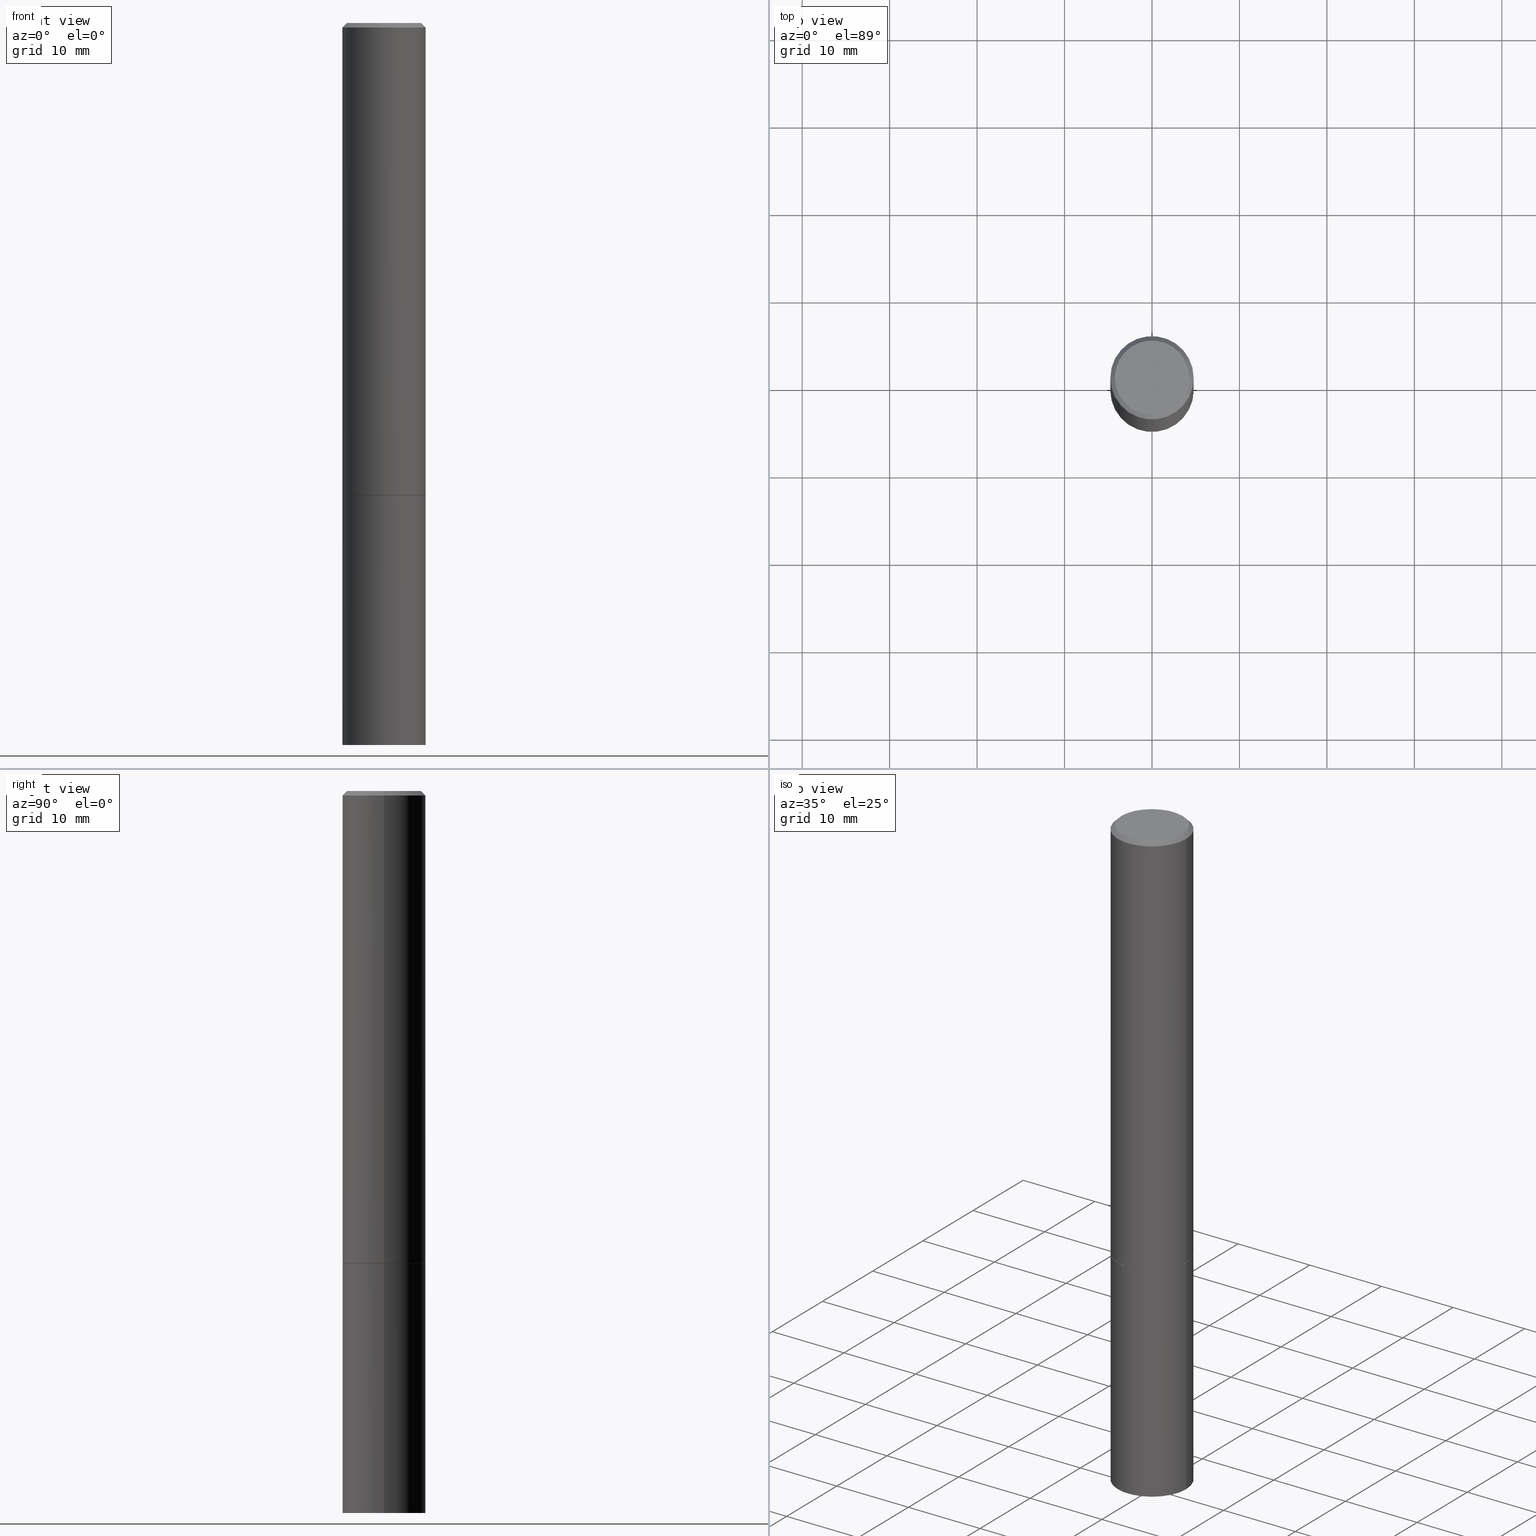
[diagram: canonical four-view strip — front | top / right | iso, engineering-drawing reading convention]
A machine part, canonical four-view strip (front | top / right | iso — engineering-drawing reading convention). The complete STEP part file that produces these views, byte-faithful:
ISO-10303-21;
HEADER;
FILE_DESCRIPTION (( 'STEP AP203' ),
    '1' );
FILE_NAME ('77148.STEP',
    '2024-02-29T14:58:03',
    ( '' ),
    ( '' ),
    'SwSTEP 2.0',
    'SolidWorks 2023',
    '' );
FILE_SCHEMA (( 'CONFIG_CONTROL_DESIGN' ));
ENDSEC;

DATA;
#1 = DIRECTION ( 'NONE',  ( 1.000000000000000000, -6.982962677686266711E-15, 0.000000000000000000 ) ) ;
#2 = ADVANCED_FACE ( 'NONE', ( #106 ), #176, .T. ) ;
#3 = PLANE ( 'NONE',  #4 ) ;
#4 = AXIS2_PLACEMENT_3D ( 'NONE', #89, #115, #173 ) ;
#5 = CARTESIAN_POINT ( 'NONE',  ( -0.1874999999999998890, 1.332267629550187060E-15, -9.223003294227942385E-30 ) ) ;
#6 = PERSON ( 'UNSPECIFIED', 'UNSPECIFIED', 'UNSPECIFIED', ('UNSPECIFIED'), ('UNSPECIFIED'), ('UNSPECIFIED') ) ;
#7 = DIRECTION ( 'NONE',  ( 1.000000000000000000, -6.982962677686265922E-15, 4.875936752492899929E-29 ) ) ;
#8 = CARTESIAN_POINT ( 'NONE',  ( 0.000000000000000000, 0.000000000000000000, 0.000000000000000000 ) ) ;
#9 = CARTESIAN_POINT ( 'NONE',  ( 0.1874999999999997502, -1.356173001359023494E-15, -0.02000000000000004205 ) ) ;
#10 = VECTOR ( 'NONE', #30, 39.37007874015748854 ) ;
#11 = ORIENTED_EDGE ( 'NONE', *, *, #210, .T. ) ;
#12 = ADVANCED_FACE ( 'NONE', ( #51 ), #189, .F. ) ;
#13 = CARTESIAN_POINT ( 'NONE',  ( 5.196621213143415268E-29, -7.419397845041683624E-15, -2.125000000000000000 ) ) ;
#14 = EDGE_CURVE ( 'NONE', #221, #358, #225, .T. ) ;
#15 = CARTESIAN_POINT ( 'NONE',  ( 5.194175744337229665E-29, -7.415906363702840616E-15, -2.123999999999999666 ) ) ;
#16 = CYLINDRICAL_SURFACE ( 'NONE', #335, 0.1875000000000000278 ) ;
#17 = EDGE_CURVE ( 'NONE', #277, #300, #337, .T. ) ;
#18 = CLOSED_SHELL ( 'NONE', ( #318, #101, #118, #249 ) ) ;
#19 = CC_DESIGN_APPROVAL ( #329, ( #66 ) ) ;
#20 = APPROVAL_STATUS ( 'not_yet_approved' ) ;
#21 = ORIENTED_EDGE ( 'NONE', *, *, #198, .T. ) ;
#22 = DATE_TIME_ROLE ( 'classification_date' ) ;
#23 = VERTEX_POINT ( 'NONE', #311 ) ;
#24 = PERSON_AND_ORGANIZATION_ROLE ( 'design_owner' ) ;
#25 = CARTESIAN_POINT ( 'NONE',  ( 1.169646248512447820E-15, 0.1674999999999997602, -5.826888680111757675E-16 ) ) ;
#26 = CIRCLE ( 'NONE', #185, 0.1875000000000000278 ) ;
#27 = CALENDAR_DATE ( 2024, 29, 2 ) ;
#28 = ORIENTED_EDGE ( 'NONE', *, *, #310, .F. ) ;
#29 = ORIENTED_EDGE ( 'NONE', *, *, #198, .F. ) ;
#30 = DIRECTION ( 'NONE',  ( 0.7071067811865353603, -2.468850131082130054E-15, 0.7071067811865595631 ) ) ;
#31 = CARTESIAN_POINT ( 'NONE',  ( 1.309305502066254683E-15, 0.1874999999999886757, -3.250000000000000444 ) ) ;
#32 = CC_DESIGN_PERSON_AND_ORGANIZATION_ASSIGNMENT ( #276, #24, ( #262 ) ) ;
#33 = CARTESIAN_POINT ( 'NONE',  ( 4.890937612370283668E-31, -6.982962677686305168E-17, -0.02000000000000004205 ) ) ;
#34 = LINE ( 'NONE', #144, #339 ) ;
#35 = AXIS2_PLACEMENT_3D ( 'NONE', #175, #36, #146 ) ;
#36 = DIRECTION ( 'NONE',  ( -2.445468806185136597E-29, 3.491481338843145583E-15, 1.000000000000000000 ) ) ;
#37 = VECTOR ( 'NONE', #269, 39.37007874015748143 ) ;
#38 = CYLINDRICAL_SURFACE ( 'NONE', #218, 0.1874999999999998890 ) ;
#39 = ORIENTED_EDGE ( 'NONE', *, *, #237, .F. ) ;
#40 = CARTESIAN_POINT ( 'NONE',  ( 5.196621213143415268E-29, -7.419397845041683624E-15, -2.125000000000000000 ) ) ;
#41 = EDGE_LOOP ( 'NONE', ( #53, #29 ) ) ;
#42 = CARTESIAN_POINT ( 'NONE',  ( 0.1864999999999999714, -8.721720384430172617E-15, -2.125000000000000000 ) ) ;
#43 = CIRCLE ( 'NONE', #59, 0.1874999999999997502 ) ;
#44 = CARTESIAN_POINT ( 'NONE',  ( -0.1875000000000000278, -2.410600365689662531E-15, -2.123999999999999666 ) ) ;
#45 = EDGE_CURVE ( 'NONE', #23, #81, #113, .T. ) ;
#46 = MECHANICAL_CONTEXT ( 'NONE', #241, 'mechanical' ) ;
#47 = EDGE_LOOP ( 'NONE', ( #148, #137, #67, #294 ) ) ;
#48 = ORGANIZATION ( 'UNSPECIFIED', 'UNSPECIFIED', '' ) ;
#49 = PERSON_AND_ORGANIZATION_ROLE ( 'creator' ) ;
#50 = ORIENTED_EDGE ( 'NONE', *, *, #141, .T. ) ;
#51 = FACE_OUTER_BOUND ( 'NONE', #309, .T. ) ;
#52 = PERSON_AND_ORGANIZATION ( #6, #48 ) ;
#53 = ORIENTED_EDGE ( 'NONE', *, *, #326, .F. ) ;
#54 = AXIS2_PLACEMENT_3D ( 'NONE', #259, #340, #316 ) ;
#55 = CALENDAR_DATE ( 2024, 29, 2 ) ;
#56 = EDGE_LOOP ( 'NONE', ( #205, #298, #77, #191 ) ) ;
#57 = DIRECTION ( 'NONE',  ( 1.000000000000000000, -6.982962677686265922E-15, 4.876176775795935793E-29 ) ) ;
#58 = FACE_OUTER_BOUND ( 'NONE', #47, .T. ) ;
#59 = AXIS2_PLACEMENT_3D ( 'NONE', #117, #230, #202 ) ;
#60 = DIRECTION ( 'NONE',  ( -2.445468806185136597E-29, 3.491481338843145583E-15, 1.000000000000000000 ) ) ;
#61 = CC_DESIGN_DATE_AND_TIME_ASSIGNMENT ( #334, #22, ( #94 ) ) ;
#62 = CARTESIAN_POINT ( 'NONE',  ( 0.1875000000000000278, -8.725211865769015625E-15, -2.123999999999999666 ) ) ;
#63 = CARTESIAN_POINT ( 'NONE',  ( -0.1875000000000000278, -8.051088468590765387E-15, -2.125000000000000000 ) ) ;
#64 = LOCAL_TIME ( 9, 58, 3.000000000000000000, #307 ) ;
#65 = CARTESIAN_POINT ( 'NONE',  ( 0.1874999999999998890, -1.309305502066174022E-15, 9.142831454617374006E-30 ) ) ;
#66 = PRODUCT_DEFINITION_FORMATION_WITH_SPECIFIED_SOURCE ( 'ANY', '', #262, .NOT_KNOWN. ) ;
#67 = ORIENTED_EDGE ( 'NONE', *, *, #233, .T. ) ;
#68 = CARTESIAN_POINT ( 'NONE',  ( -0.1864999999999999714, -6.094235642849095994E-15, -2.125000000000000000 ) ) ;
#69 = FACE_OUTER_BOUND ( 'NONE', #336, .T. ) ;
#70 = CARTESIAN_POINT ( 'NONE',  ( 0.000000000000000000, 0.000000000000000000, 0.000000000000000000 ) ) ;
#71 = CALENDAR_DATE ( 2024, 29, 2 ) ;
#72 = APPROVAL ( #190, 'UNSPECIFIED' ) ;
#73 = DIRECTION ( 'NONE',  ( 1.000000000000000000, 0.000000000000000000, 0.000000000000000000 ) ) ;
#74 = EDGE_LOOP ( 'NONE', ( #327, #79 ) ) ;
#75 = CIRCLE ( 'NONE', #133, 0.1674999999999997602 ) ;
#76 = DATE_TIME_ROLE ( 'creation_date' ) ;
#77 = ORIENTED_EDGE ( 'NONE', *, *, #157, .T. ) ;
#78 =( NAMED_UNIT ( * ) PLANE_ANGLE_UNIT ( ) SI_UNIT ( $, .RADIAN. ) );
#79 = ORIENTED_EDGE ( 'NONE', *, *, #45, .F. ) ;
#80 = PERSON_AND_ORGANIZATION ( #6, #48 ) ;
#81 = VERTEX_POINT ( 'NONE', #234 ) ;
#82 = EDGE_CURVE ( 'NONE', #300, #275, #155, .T. ) ;
#83 = CIRCLE ( 'NONE', #35, 0.1875000000000000278 ) ;
#84 = DIRECTION ( 'NONE',  ( -0.7071067811865465735, 2.468850131082246805E-15, -0.7071067811865484609 ) ) ;
#85 = CC_DESIGN_DATE_AND_TIME_ASSIGNMENT ( #330, #76, ( #143 ) ) ;
#86 = DIRECTION ( 'NONE',  ( -2.445468806185136597E-29, 3.491481338843145583E-15, 1.000000000000000000 ) ) ;
#87 = DIRECTION ( 'NONE',  ( -2.445468806185136597E-29, 3.491481338843145583E-15, 1.000000000000000000 ) ) ;
#88 = VECTOR ( 'NONE', #324, 39.37007874015748143 ) ;
#89 = CARTESIAN_POINT ( 'NONE',  ( 1.309305502066226876E-15, 0.1874999999999926170, -2.125000000000000444 ) ) ;
#90 = DIRECTION ( 'NONE',  ( -2.445468806185136877E-29, 3.491481338843145188E-15, 1.000000000000000000 ) ) ;
#91 = PRODUCT_DEFINITION_SHAPE ( 'NONE', 'NONE',  #143 ) ;
#92 = DIRECTION ( 'NONE',  ( 1.000000000000000000, -6.982962677686269077E-15, 0.000000000000000000 ) ) ;
#93 = AXIS2_PLACEMENT_3D ( 'NONE', #314, #283, #57 ) ;
#94 = SECURITY_CLASSIFICATION ( '', '', #353 ) ;
#95 = LINE ( 'NONE', #68, #158 ) ;
#96 = CC_DESIGN_PERSON_AND_ORGANIZATION_ASSIGNMENT ( #223, #156, ( #143 ) ) ;
#97 = CYLINDRICAL_SURFACE ( 'NONE', #193, 0.1875000000000000278 ) ;
#98 = DIRECTION ( 'NONE',  ( -2.445468806185136597E-29, 3.491481338843145583E-15, 1.000000000000000000 ) ) ;
#99 = DIRECTION ( 'NONE',  ( 1.000000000000000000, -6.982962677686269077E-15, 0.000000000000000000 ) ) ;
#100 = AXIS2_PLACEMENT_3D ( 'NONE', #40, #349, #99 ) ;
#101 = ADVANCED_FACE ( 'NONE', ( #229 ), #172, .T. ) ;
#102 = APPROVAL_ROLE ( '' ) ;
#103 = APPROVAL_DATE_TIME ( #354, #72 ) ;
#104 = ORIENTED_EDGE ( 'NONE', *, *, #112, .T. ) ;
#105 = COORDINATED_UNIVERSAL_TIME_OFFSET ( 5, 0, .BEHIND. ) ;
#106 = FACE_OUTER_BOUND ( 'NONE', #165, .T. ) ;
#107 = COORDINATED_UNIVERSAL_TIME_OFFSET ( 5, 0, .BEHIND. ) ;
#108 = ORIENTED_EDGE ( 'NONE', *, *, #17, .F. ) ;
#109 = CALENDAR_DATE ( 2024, 29, 2 ) ;
#110 = ORIENTED_EDGE ( 'NONE', *, *, #278, .F. ) ;
#111 = ORIENTED_EDGE ( 'NONE', *, *, #264, .F. ) ;
#112 = EDGE_CURVE ( 'NONE', #346, #129, #138, .T. ) ;
#113 = CIRCLE ( 'NONE', #243, 0.1875000000000000278 ) ;
#114 = CONICAL_SURFACE ( 'NONE', #100, 0.1864999999999999714, 0.7853981633974311816 ) ;
#115 = DIRECTION ( 'NONE',  ( 2.438088387897960049E-29, -3.491481338843145188E-15, -1.000000000000000000 ) ) ;
#116 = DIRECTION ( 'NONE',  ( -1.000000000000000000, 6.982962677686265133E-15, 0.000000000000000000 ) ) ;
#117 = CARTESIAN_POINT ( 'NONE',  ( 4.890937612370283668E-31, -6.982962677686305168E-17, -0.02000000000000004205 ) ) ;
#118 = ADVANCED_FACE ( 'NONE', ( #231 ), #3, .F. ) ;
#119 = DIRECTION ( 'NONE',  ( -2.445468806185136597E-29, 3.491481338843145583E-15, 1.000000000000000000 ) ) ;
#120 = CARTESIAN_POINT ( 'NONE',  ( -0.1874999999999997502, 1.239475875289309935E-15, -0.02000000000000004205 ) ) ;
#121 = ADVANCED_FACE ( 'NONE', ( #140 ), #341, .F. ) ;
#122 = FACE_OUTER_BOUND ( 'NONE', #265, .T. ) ;
#123 = LENGTH_MEASURE_WITH_UNIT ( LENGTH_MEASURE( 0.02539999999999999897 ), #292 );
#124 = DIRECTION ( 'NONE',  ( -2.445468806185136597E-29, 3.491481338843145583E-15, 1.000000000000000000 ) ) ;
#125 = DIRECTION ( 'NONE',  ( -2.445468806185136597E-29, 3.491481338843145583E-15, 1.000000000000000000 ) ) ;
#126 = CARTESIAN_POINT ( 'NONE',  ( 5.196621213143415268E-29, -7.419397845041683624E-15, -2.125000000000000000 ) ) ;
#127 = CC_DESIGN_APPROVAL ( #343, ( #143 ) ) ;
#128 = APPROVAL_ROLE ( '' ) ;
#129 = VERTEX_POINT ( 'NONE', #62 ) ;
#130 = CC_DESIGN_PERSON_AND_ORGANIZATION_ASSIGNMENT ( #362, #134, ( #94 ) ) ;
#131 = COORDINATED_UNIVERSAL_TIME_OFFSET ( 5, 0, .BEHIND. ) ;
#132 = ORIENTED_EDGE ( 'NONE', *, *, #282, .T. ) ;
#133 = AXIS2_PLACEMENT_3D ( 'NONE', #317, #119, #232 ) ;
#134 = PERSON_AND_ORGANIZATION_ROLE ( 'classification_officer' ) ;
#135 = ORIENTED_EDGE ( 'NONE', *, *, #310, .T. ) ;
#136 = ADVANCED_FACE ( 'NONE', ( #258 ), #351, .T. ) ;
#137 = ORIENTED_EDGE ( 'NONE', *, *, #141, .F. ) ;
#138 = LINE ( 'NONE', #366, #10 ) ;
#139 = CC_DESIGN_SECURITY_CLASSIFICATION ( #94, ( #66 ) ) ;
#140 = FACE_OUTER_BOUND ( 'NONE', #41, .T. ) ;
#141 = EDGE_CURVE ( 'NONE', #361, #253, #323, .T. ) ;
#142 = DIRECTION ( 'NONE',  ( 2.438088387897960049E-29, -3.491481338843145188E-15, -1.000000000000000000 ) ) ;
#143 = PRODUCT_DEFINITION ( 'UNKNOWN', '', #66, #154 ) ;
#144 = CARTESIAN_POINT ( 'NONE',  ( 0.1875000000000000278, -1.309305502066175008E-15, 9.142831454617381013E-30 ) ) ;
#145 = AXIS2_PLACEMENT_3D ( 'NONE', #33, #86, #169 ) ;
#146 = DIRECTION ( 'NONE',  ( 1.000000000000000000, -6.982962677686261189E-15, 0.000000000000000000 ) ) ;
#147 = DIRECTION ( 'NONE',  ( -2.445468806185136597E-29, 3.491481338843145583E-15, 1.000000000000000000 ) ) ;
#148 = ORIENTED_EDGE ( 'NONE', *, *, #257, .F. ) ;
#149 = ORIENTED_EDGE ( 'NONE', *, *, #14, .T. ) ;
#150 = CLOSED_SHELL ( 'NONE', ( #299, #350, #136, #162, #356, #2, #121, #12 ) ) ;
#151 = APPROVAL_PERSON_ORGANIZATION ( #52, #329, #128 ) ;
#152 = LINE ( 'NONE', #209, #171 ) ;
#153 = ADVANCED_BREP_SHAPE_REPRESENTATION ( '77148', ( #207, #208, #238 ), #290 ) ;
#154 = DESIGN_CONTEXT ( 'detailed design', #302, 'design' ) ;
#155 = CIRCLE ( 'NONE', #145, 0.1874999999999997502 ) ;
#156 = PERSON_AND_ORGANIZATION_ROLE ( 'creator' ) ;
#157 = EDGE_CURVE ( 'NONE', #275, #300, #43, .T. ) ;
#158 = VECTOR ( 'NONE', #235, 39.37007874015748854 ) ;
#159 = ORIENTED_EDGE ( 'NONE', *, *, #264, .T. ) ;
#160 = APPROVAL_ROLE ( '' ) ;
#161 = VERTEX_POINT ( 'NONE', #312 ) ;
#162 = ADVANCED_FACE ( 'NONE', ( #58 ), #365, .T. ) ;
#163 = ORIENTED_EDGE ( 'NONE', *, *, #210, .F. ) ;
#164 = PERSON_AND_ORGANIZATION_ROLE ( 'design_supplier' ) ;
#165 = EDGE_LOOP ( 'NONE', ( #111, #21, #104, #39 ) ) ;
#166 = APPROVAL_PERSON_ORGANIZATION ( #301, #343, #160 ) ;
#167 =( CONVERSION_BASED_UNIT ( 'INCH', #123 ) LENGTH_UNIT ( ) NAMED_UNIT ( #315 ) );
#168 = ORIENTED_EDGE ( 'NONE', *, *, #17, .T. ) ;
#169 = DIRECTION ( 'NONE',  ( 1.000000000000000000, -6.982962677686265133E-15, 0.000000000000000000 ) ) ;
#170 = DIRECTION ( 'NONE',  ( 2.445468806185136597E-29, -3.491481338843145583E-15, -1.000000000000000000 ) ) ;
#171 = VECTOR ( 'NONE', #242, 39.37007874015748143 ) ;
#172 = PLANE ( 'NONE',  #345 ) ;
#173 = DIRECTION ( 'NONE',  ( -1.000000000000000000, 6.982962677686265922E-15, -4.876176775795935793E-29 ) ) ;
#174 = PRODUCT_RELATED_PRODUCT_CATEGORY ( 'detail', '', ( #262 ) ) ;
#175 = CARTESIAN_POINT ( 'NONE',  ( 7.947773620101693940E-29, -1.134731435124022443E-14, -3.250000000000000000 ) ) ;
#176 = CONICAL_SURFACE ( 'NONE', #236, 0.1864999999999999714, 0.7853981633974311816 ) ;
#177 = LOCAL_TIME ( 9, 58, 3.000000000000000000, #107 ) ;
#178 = DIRECTION ( 'NONE',  ( -2.445468806185136597E-29, 3.491481338843145583E-15, 1.000000000000000000 ) ) ;
#179 = LINE ( 'NONE', #9, #37 ) ;
#180 = ORIENTED_EDGE ( 'NONE', *, *, #112, .F. ) ;
#181 = FACE_OUTER_BOUND ( 'NONE', #188, .T. ) ;
#182 = FACE_OUTER_BOUND ( 'NONE', #280, .T. ) ;
#183 = EDGE_LOOP ( 'NONE', ( #132, #168, #246, #306 ) ) ;
#184 = CARTESIAN_POINT ( 'NONE',  ( 0.000000000000000000, 0.000000000000000000, 0.000000000000000000 ) ) ;
#185 = AXIS2_PLACEMENT_3D ( 'NONE', #15, #270, #240 ) ;
#186 = ORIENTED_EDGE ( 'NONE', *, *, #304, .T. ) ;
#187 = DIRECTION ( 'NONE',  ( 0.000000000000000000, 0.000000000000000000, 1.000000000000000000 ) ) ;
#188 = EDGE_LOOP ( 'NONE', ( #364, #159, #273, #180 ) ) ;
#189 = PLANE ( 'NONE',  #328 ) ;
#190 = APPROVAL_STATUS ( 'not_yet_approved' ) ;
#191 = ORIENTED_EDGE ( 'NONE', *, *, #233, .F. ) ;
#192 = AXIS2_PLACEMENT_3D ( 'NONE', #338, #60, #7 ) ;
#193 = AXIS2_PLACEMENT_3D ( 'NONE', #342, #98, #239 ) ;
#194 = CARTESIAN_POINT ( 'NONE',  ( 5.194175744337229665E-29, -7.415906363702840616E-15, -2.123999999999999666 ) ) ;
#195 = DIRECTION ( 'NONE',  ( 2.445468806185136597E-29, -3.491481338843145583E-15, -1.000000000000000000 ) ) ;
#196 = CC_DESIGN_PERSON_AND_ORGANIZATION_ASSIGNMENT ( #332, #164, ( #66 ) ) ;
#197 = DIRECTION ( 'NONE',  ( -2.445468806185136597E-29, 3.491481338843145583E-15, 1.000000000000000000 ) ) ;
#198 = EDGE_CURVE ( 'NONE', #161, #346, #254, .T. ) ;
#199 = VECTOR ( 'NONE', #90, 39.37007874015748143 ) ;
#200 = AXIS2_PLACEMENT_3D ( 'NONE', #194, #295, #268 ) ;
#201 = CARTESIAN_POINT ( 'NONE',  ( 4.890937612370283668E-31, -6.982962677686305168E-17, -0.02000000000000004205 ) ) ;
#202 = DIRECTION ( 'NONE',  ( 1.000000000000000000, -6.982962677686265133E-15, 0.000000000000000000 ) ) ;
#203 = FACE_OUTER_BOUND ( 'NONE', #183, .T. ) ;
#204 = CARTESIAN_POINT ( 'NONE',  ( -0.1674999999999997602, 1.204561061900878878E-15, 4.268512490092109750E-18 ) ) ;
#205 = ORIENTED_EDGE ( 'NONE', *, *, #214, .F. ) ;
#206 = CARTESIAN_POINT ( 'NONE',  ( 0.000000000000000000, 0.000000000000000000, 0.000000000000000000 ) ) ;
#207 = MANIFOLD_SOLID_BREP ( 'Body-Move/Copy2[1]', #18 ) ;
#208 = MANIFOLD_SOLID_BREP ( 'Body-Move/Copy2[2]', #150 ) ;
#209 = CARTESIAN_POINT ( 'NONE',  ( -0.1875000000000000278, 1.332267629550188046E-15, -9.223003294227947991E-30 ) ) ;
#210 = EDGE_CURVE ( 'NONE', #81, #358, #34, .T. ) ;
#211 = AXIS2_PLACEMENT_3D ( 'NONE', #287, #170, #286 ) ;
#212 = CIRCLE ( 'NONE', #256, 0.1864999999999999714 ) ;
#213 = CARTESIAN_POINT ( 'NONE',  ( -0.1874999999999997502, 1.239475875289309935E-15, -0.02000000000000004205 ) ) ;
#214 = EDGE_CURVE ( 'NONE', #253, #361, #75, .T. ) ;
#215 = SHAPE_DEFINITION_REPRESENTATION ( #91, #153 ) ;
#216 = ORIENTED_EDGE ( 'NONE', *, *, #228, .T. ) ;
#217 = AXIS2_PLACEMENT_3D ( 'NONE', #201, #195, #116 ) ;
#218 = AXIS2_PLACEMENT_3D ( 'NONE', #8, #147, #263 ) ;
#219 = CARTESIAN_POINT ( 'NONE',  ( 5.196621213143415268E-29, -7.419397845041683624E-15, -2.125000000000000000 ) ) ;
#220 = APPROVAL_DATE_TIME ( #325, #329 ) ;
#221 = VERTEX_POINT ( 'NONE', #63 ) ;
#222 = UNCERTAINTY_MEASURE_WITH_UNIT (LENGTH_MEASURE( 1.000000000000000082E-05 ), #167, 'distance_accuracy_value', 'NONE');
#223 = PERSON_AND_ORGANIZATION ( #6, #48 ) ;
#224 = ORIENTED_EDGE ( 'NONE', *, *, #45, .T. ) ;
#225 = CIRCLE ( 'NONE', #313, 0.1875000000000000278 ) ;
#226 = ORIENTED_EDGE ( 'NONE', *, *, #237, .T. ) ;
#227 = AXIS2_PLACEMENT_3D ( 'NONE', #13, #125, #293 ) ;
#228 = EDGE_CURVE ( 'NONE', #81, #23, #83, .T. ) ;
#229 = FACE_OUTER_BOUND ( 'NONE', #74, .T. ) ;
#230 = DIRECTION ( 'NONE',  ( -2.445468806185136597E-29, 3.491481338843145583E-15, 1.000000000000000000 ) ) ;
#231 = FACE_OUTER_BOUND ( 'NONE', #266, .T. ) ;
#232 = DIRECTION ( 'NONE',  ( 1.000000000000000000, -6.982962677686265922E-15, 4.875936752492899929E-29 ) ) ;
#233 = EDGE_CURVE ( 'NONE', #361, #300, #261, .T. ) ;
#234 = CARTESIAN_POINT ( 'NONE',  ( 0.1875000000000000278, -1.265661985330639786E-14, -3.250000000000000000 ) ) ;
#235 = DIRECTION ( 'NONE',  ( -0.7071067811865353603, 7.493145998870309984E-15, 0.7071067811865595631 ) ) ;
#236 = AXIS2_PLACEMENT_3D ( 'NONE', #219, #331, #303 ) ;
#237 = EDGE_CURVE ( 'NONE', #277, #129, #289, .T. ) ;
#238 = AXIS2_PLACEMENT_3D ( 'NONE', #184, #187, #73 ) ;
#239 = DIRECTION ( 'NONE',  ( 1.000000000000000000, -6.982962677686265922E-15, 4.876176775795935793E-29 ) ) ;
#240 = DIRECTION ( 'NONE',  ( 1.000000000000000000, -6.982962677686266711E-15, 0.000000000000000000 ) ) ;
#241 = APPLICATION_CONTEXT ( 'configuration controlled 3d designs of mechanical parts and assemblies' ) ;
#242 = DIRECTION ( 'NONE',  ( -2.445468806185136877E-29, 3.491481338843145188E-15, 1.000000000000000000 ) ) ;
#243 = AXIS2_PLACEMENT_3D ( 'NONE', #255, #87, #288 ) ;
#244 = APPLICATION_PROTOCOL_DEFINITION ( 'international standard', 'config_control_design', 1994, #302 ) ;
#245 = COORDINATED_UNIVERSAL_TIME_OFFSET ( 5, 0, .BEHIND. ) ;
#246 = ORIENTED_EDGE ( 'NONE', *, *, #157, .F. ) ;
#247 = CALENDAR_DATE ( 2024, 29, 2 ) ;
#248 = ORIENTED_EDGE ( 'NONE', *, *, #214, .T. ) ;
#249 = ADVANCED_FACE ( 'NONE', ( #122 ), #97, .T. ) ;
#250 = LOCAL_TIME ( 9, 58, 3.000000000000000000, #131 ) ;
#251 = DIRECTION ( 'NONE',  ( 2.438088387897960049E-29, -3.491481338843145188E-15, -1.000000000000000000 ) ) ;
#252 = ORIENTED_EDGE ( 'NONE', *, *, #82, .F. ) ;
#253 = VERTEX_POINT ( 'NONE', #321 ) ;
#254 = CIRCLE ( 'NONE', #54, 0.1864999999999999714 ) ;
#255 = CARTESIAN_POINT ( 'NONE',  ( 7.947773620101693940E-29, -1.134731435124022443E-14, -3.250000000000000000 ) ) ;
#256 = AXIS2_PLACEMENT_3D ( 'NONE', #126, #348, #92 ) ;
#257 = EDGE_CURVE ( 'NONE', #253, #275, #179, .T. ) ;
#258 = FACE_OUTER_BOUND ( 'NONE', #56, .T. ) ;
#259 = CARTESIAN_POINT ( 'NONE',  ( 5.196621213143415268E-29, -7.419397845041683624E-15, -2.125000000000000000 ) ) ;
#260 = DIRECTION ( 'NONE',  ( -2.445468806185136877E-29, 3.491481338843145188E-15, 1.000000000000000000 ) ) ;
#261 = LINE ( 'NONE', #120, #284 ) ;
#262 = PRODUCT ( '77148', '77148', '', ( #46 ) ) ;
#263 = DIRECTION ( 'NONE',  ( 1.000000000000000000, -6.982962677686265922E-15, 4.876176775795935793E-29 ) ) ;
#264 = EDGE_CURVE ( 'NONE', #161, #277, #95, .T. ) ;
#265 = EDGE_LOOP ( 'NONE', ( #110, #224, #11, #355 ) ) ;
#266 = EDGE_LOOP ( 'NONE', ( #135, #149 ) ) ;
#267 = CC_DESIGN_PERSON_AND_ORGANIZATION_ASSIGNMENT ( #274, #49, ( #66 ) ) ;
#268 = DIRECTION ( 'NONE',  ( 1.000000000000000000, -6.982962677686266711E-15, 0.000000000000000000 ) ) ;
#269 = DIRECTION ( 'NONE',  ( 0.7071067811865465735, -7.319954787623252890E-15, -0.7071067811865484609 ) ) ;
#270 = DIRECTION ( 'NONE',  ( -2.445468806185136597E-29, 3.491481338843145583E-15, 1.000000000000000000 ) ) ;
#271 = CC_DESIGN_APPROVAL ( #72, ( #94 ) ) ;
#272 = LOCAL_TIME ( 9, 58, 3.000000000000000000, #105 ) ;
#273 = ORIENTED_EDGE ( 'NONE', *, *, #282, .F. ) ;
#274 = PERSON_AND_ORGANIZATION ( #6, #48 ) ;
#275 = VERTEX_POINT ( 'NONE', #296 ) ;
#276 = PERSON_AND_ORGANIZATION ( #6, #48 ) ;
#277 = VERTEX_POINT ( 'NONE', #44 ) ;
#278 = EDGE_CURVE ( 'NONE', #23, #221, #152, .T. ) ;
#279 =( NAMED_UNIT ( * ) SI_UNIT ( $, .STERADIAN. ) SOLID_ANGLE_UNIT ( ) );
#280 = EDGE_LOOP ( 'NONE', ( #108, #226, #186, #252 ) ) ;
#281 = ORIENTED_EDGE ( 'NONE', *, *, #278, .T. ) ;
#282 = EDGE_CURVE ( 'NONE', #129, #277, #26, .T. ) ;
#283 = DIRECTION ( 'NONE',  ( -2.438088387897960049E-29, 3.491481338843145188E-15, 1.000000000000000000 ) ) ;
#284 = VECTOR ( 'NONE', #84, 39.37007874015748143 ) ;
#285 = DIRECTION ( 'NONE',  ( -1.000000000000000000, 6.982962677686265922E-15, -4.876176775795935793E-29 ) ) ;
#286 = DIRECTION ( 'NONE',  ( -1.000000000000000000, 6.982962677686265133E-15, 0.000000000000000000 ) ) ;
#287 = CARTESIAN_POINT ( 'NONE',  ( 4.890937612370283668E-31, -6.982962677686305168E-17, -0.02000000000000004205 ) ) ;
#288 = DIRECTION ( 'NONE',  ( 1.000000000000000000, -6.982962677686261189E-15, 0.000000000000000000 ) ) ;
#289 = CIRCLE ( 'NONE', #200, 0.1875000000000000278 ) ;
#290 =( GEOMETRIC_REPRESENTATION_CONTEXT ( 3 ) GLOBAL_UNCERTAINTY_ASSIGNED_CONTEXT ( ( #222 ) ) GLOBAL_UNIT_ASSIGNED_CONTEXT ( ( #167, #78, #279 ) ) REPRESENTATION_CONTEXT ( 'NONE', 'WORKASPACE' ) );
#291 = DIRECTION ( 'NONE',  ( 1.000000000000000000, -6.982962677686265922E-15, 4.876176775795935793E-29 ) ) ;
#292 =( LENGTH_UNIT ( ) NAMED_UNIT ( * ) SI_UNIT ( $, .METRE. ) );
#293 = DIRECTION ( 'NONE',  ( 1.000000000000000000, -6.982962677686266711E-15, 0.000000000000000000 ) ) ;
#294 = ORIENTED_EDGE ( 'NONE', *, *, #82, .T. ) ;
#295 = DIRECTION ( 'NONE',  ( -2.445468806185136597E-29, 3.491481338843145583E-15, 1.000000000000000000 ) ) ;
#296 = CARTESIAN_POINT ( 'NONE',  ( 0.1874999999999997502, -1.356173001359023494E-15, -0.02000000000000004205 ) ) ;
#297 = APPLICATION_PROTOCOL_DEFINITION ( 'international standard', 'config_control_design', 1994, #241 ) ;
#298 = ORIENTED_EDGE ( 'NONE', *, *, #257, .T. ) ;
#299 = ADVANCED_FACE ( 'NONE', ( #181 ), #114, .T. ) ;
#300 = VERTEX_POINT ( 'NONE', #213 ) ;
#301 = PERSON_AND_ORGANIZATION ( #6, #48 ) ;
#302 = APPLICATION_CONTEXT ( 'configuration controlled 3d designs of mechanical parts and assemblies' ) ;
#303 = DIRECTION ( 'NONE',  ( 1.000000000000000000, -6.982962677686269077E-15, 0.000000000000000000 ) ) ;
#304 = EDGE_CURVE ( 'NONE', #129, #275, #347, .T. ) ;
#305 = DATE_AND_TIME ( #71, #250 ) ;
#306 = ORIENTED_EDGE ( 'NONE', *, *, #304, .F. ) ;
#307 = COORDINATED_UNIVERSAL_TIME_OFFSET ( 5, 0, .BEHIND. ) ;
#308 = APPROVAL_PERSON_ORGANIZATION ( #80, #72, #102 ) ;
#309 = EDGE_LOOP ( 'NONE', ( #50, #248 ) ) ;
#310 = EDGE_CURVE ( 'NONE', #358, #221, #320, .T. ) ;
#311 = CARTESIAN_POINT ( 'NONE',  ( -0.1875000000000000278, -8.051088468590765387E-15, -3.250000000000000000 ) ) ;
#312 = CARTESIAN_POINT ( 'NONE',  ( -0.1864999999999999714, -6.088937188500874381E-15, -2.125000000000000000 ) ) ;
#313 = AXIS2_PLACEMENT_3D ( 'NONE', #333, #197, #1 ) ;
#314 = CARTESIAN_POINT ( 'NONE',  ( 5.196621213143415268E-29, -7.419397845041683624E-15, -2.125000000000000000 ) ) ;
#315 = DIMENSIONAL_EXPONENTS ( 1.000000000000000000, 0.000000000000000000, 0.000000000000000000, 0.000000000000000000, 0.000000000000000000, 0.000000000000000000, 0.000000000000000000 ) ;
#316 = DIRECTION ( 'NONE',  ( 1.000000000000000000, -6.982962677686269077E-15, 0.000000000000000000 ) ) ;
#317 = CARTESIAN_POINT ( 'NONE',  ( -1.043851414335219820E-46, 1.490343170380447200E-32, 4.268512490100411279E-18 ) ) ;
#318 = ADVANCED_FACE ( 'NONE', ( #69 ), #16, .T. ) ;
#319 = CYLINDRICAL_SURFACE ( 'NONE', #352, 0.1874999999999998890 ) ;
#320 = CIRCLE ( 'NONE', #227, 0.1875000000000000278 ) ;
#321 = CARTESIAN_POINT ( 'NONE',  ( 0.1674999999999997602, -1.252653207992876711E-15, 4.268512490108880748E-18 ) ) ;
#322 = DIRECTION ( 'NONE',  ( 1.000000000000000000, -6.982962677686265922E-15, 4.876176775795935793E-29 ) ) ;
#323 = CIRCLE ( 'NONE', #192, 0.1674999999999997602 ) ;
#324 = DIRECTION ( 'NONE',  ( -2.445468806185136877E-29, 3.491481338843145188E-15, 1.000000000000000000 ) ) ;
#325 = DATE_AND_TIME ( #27, #359 ) ;
#326 = EDGE_CURVE ( 'NONE', #346, #161, #212, .T. ) ;
#327 = ORIENTED_EDGE ( 'NONE', *, *, #228, .F. ) ;
#328 = AXIS2_PLACEMENT_3D ( 'NONE', #25, #251, #363 ) ;
#329 = APPROVAL ( #20, 'UNSPECIFIED' ) ;
#330 = DATE_AND_TIME ( #247, #177 ) ;
#331 = DIRECTION ( 'NONE',  ( -2.445468806185136597E-29, 3.491481338843145583E-15, 1.000000000000000000 ) ) ;
#332 = PERSON_AND_ORGANIZATION ( #6, #48 ) ;
#333 = CARTESIAN_POINT ( 'NONE',  ( 5.196621213143415268E-29, -7.419397845041683624E-15, -2.125000000000000000 ) ) ;
#334 = DATE_AND_TIME ( #109, #272 ) ;
#335 = AXIS2_PLACEMENT_3D ( 'NONE', #70, #124, #322 ) ;
#336 = EDGE_LOOP ( 'NONE', ( #216, #281, #28, #163 ) ) ;
#337 = LINE ( 'NONE', #5, #199 ) ;
#338 = CARTESIAN_POINT ( 'NONE',  ( -1.043851414335219820E-46, 1.490343170380447200E-32, 4.268512490100411279E-18 ) ) ;
#339 = VECTOR ( 'NONE', #260, 39.37007874015748143 ) ;
#340 = DIRECTION ( 'NONE',  ( -2.445468806185136597E-29, 3.491481338843145583E-15, 1.000000000000000000 ) ) ;
#341 = PLANE ( 'NONE',  #93 ) ;
#342 = CARTESIAN_POINT ( 'NONE',  ( 0.000000000000000000, 0.000000000000000000, 0.000000000000000000 ) ) ;
#343 = APPROVAL ( #357, 'UNSPECIFIED' ) ;
#344 = CARTESIAN_POINT ( 'NONE',  ( 0.1875000000000000278, -8.728703347107858632E-15, -2.125000000000000000 ) ) ;
#345 = AXIS2_PLACEMENT_3D ( 'NONE', #31, #142, #285 ) ;
#346 = VERTEX_POINT ( 'NONE', #42 ) ;
#347 = LINE ( 'NONE', #65, #88 ) ;
#348 = DIRECTION ( 'NONE',  ( -2.445468806185136597E-29, 3.491481338843145583E-15, 1.000000000000000000 ) ) ;
#349 = DIRECTION ( 'NONE',  ( -2.445468806185136597E-29, 3.491481338843145583E-15, 1.000000000000000000 ) ) ;
#350 = ADVANCED_FACE ( 'NONE', ( #203 ), #319, .T. ) ;
#351 = CONICAL_SURFACE ( 'NONE', #217, 0.1874999999999997502, 0.7853981633974469467 ) ;
#352 = AXIS2_PLACEMENT_3D ( 'NONE', #206, #178, #291 ) ;
#353 = SECURITY_CLASSIFICATION_LEVEL ( 'unclassified' ) ;
#354 = DATE_AND_TIME ( #55, #64 ) ;
#355 = ORIENTED_EDGE ( 'NONE', *, *, #14, .F. ) ;
#356 = ADVANCED_FACE ( 'NONE', ( #182 ), #38, .T. ) ;
#357 = APPROVAL_STATUS ( 'not_yet_approved' ) ;
#358 = VERTEX_POINT ( 'NONE', #344 ) ;
#359 = LOCAL_TIME ( 9, 58, 3.000000000000000000, #245 ) ;
#360 = APPROVAL_DATE_TIME ( #305, #343 ) ;
#361 = VERTEX_POINT ( 'NONE', #204 ) ;
#362 = PERSON_AND_ORGANIZATION ( #6, #48 ) ;
#363 = DIRECTION ( 'NONE',  ( -1.000000000000000000, 6.982962677686265922E-15, -4.876176775795935793E-29 ) ) ;
#364 = ORIENTED_EDGE ( 'NONE', *, *, #326, .T. ) ;
#365 = CONICAL_SURFACE ( 'NONE', #211, 0.1874999999999997502, 0.7853981633974469467 ) ;
#366 = CARTESIAN_POINT ( 'NONE',  ( 0.1864999999999999714, -8.721720384430172617E-15, -2.125000000000000000 ) ) ;
ENDSEC;
END-ISO-10303-21;
